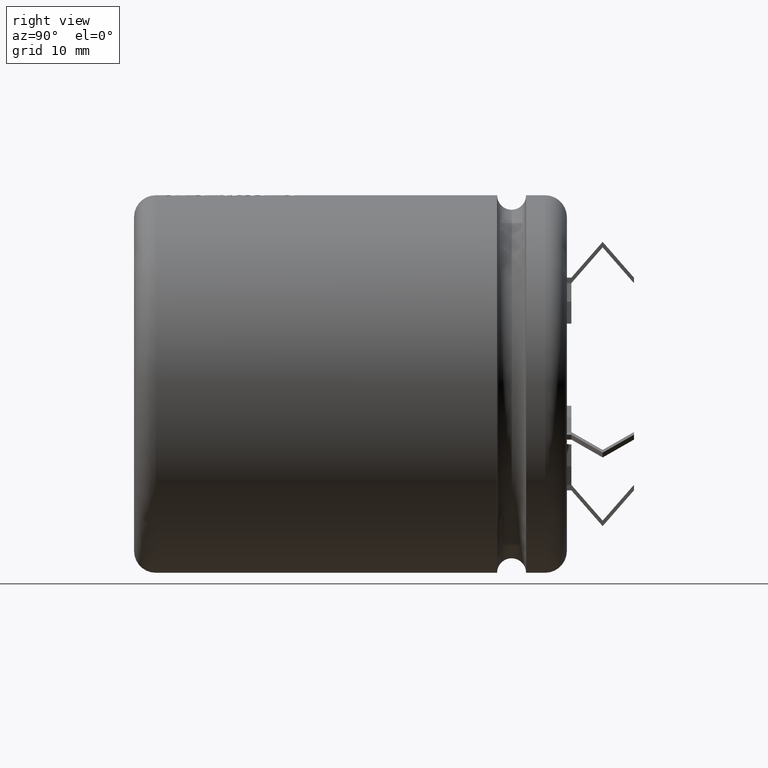
[diagram: clean part render]
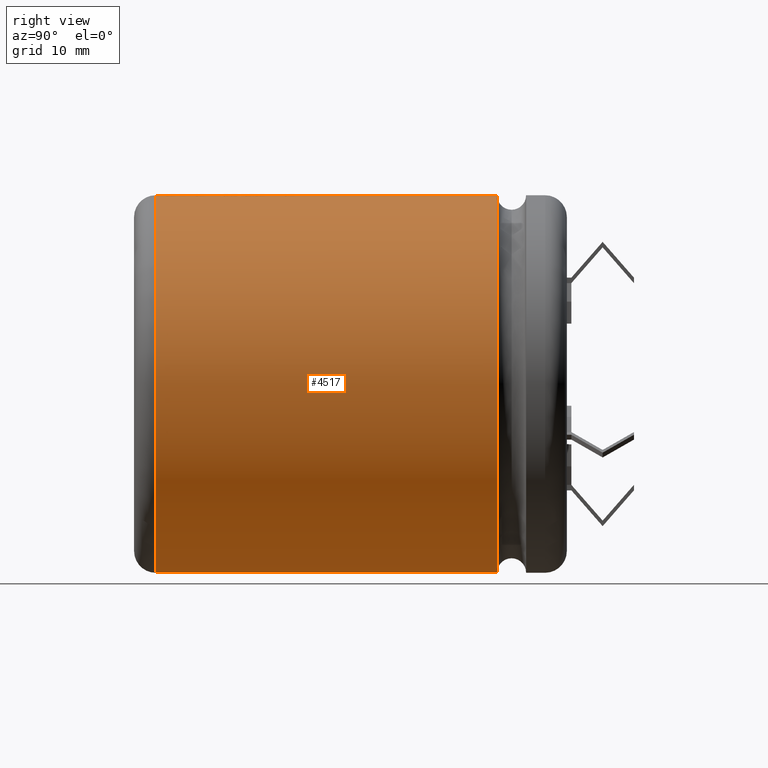
[diagram: same view with one face highlighted and labeled with its STEP entity id]
A machine part, right view. The second image highlights one B-rep face of the part: STEP entity #4517.
In plain terms, the highlighted cylindrical surface (partial cylindrical patch) has radius 20.5 mm, axis along (-0, -1, -0).
Its self-contained STEP definition (entity closure, byte-faithful):
#2 = CARTESIAN_POINT ( 'NONE',  ( 1.023532434687133700, 6.759284640955069500, 20.48082753327001300 ) ) ;
#29 = VERTEX_POINT ( 'NONE', #1728 ) ;
#30 = B_SPLINE_CURVE_WITH_KNOTS ( 'NONE', 3,
 ( #3514, #1691, #938, #2434 ),
 .UNSPECIFIED., .F., .F.,
 ( 4, 4 ),
 ( 0.06501775419659641700, 1.000000000000000000 ),
 .UNSPECIFIED. ) ;
#38 = VECTOR ( 'NONE', #4005, 1000.000000000000000 ) ;
#75 = CARTESIAN_POINT ( 'NONE',  ( 1.533874242116382900, 6.612015992414344000, 20.44253481859263000 ) ) ;
#77 = DIRECTION ( 'NONE',  ( 0.0000000000000000000, 1.000000000000000000, 0.0000000000000000000 ) ) ;
#88 = VECTOR ( 'NONE', #3557, 1000.000000000000000 ) ;
#117 = VERTEX_POINT ( 'NONE', #4685 ) ;
#122 = LINE ( 'NONE', #3037, #3861 ) ;
#130 = CARTESIAN_POINT ( 'NONE',  ( 1.533874242116382900, 11.94969606425971200, 20.44253481859263000 ) ) ;
#143 = ORIENTED_EDGE ( 'NONE', *, *, #2532, .F. ) ;
#144 = CARTESIAN_POINT ( 'NONE',  ( 1.533874242116383100, 3.364711372035859700, 20.44253481859263000 ) ) ;
#160 = CARTESIAN_POINT ( 'NONE',  ( 1.533874242116382900, 4.224663171668884100, 20.44253481859263000 ) ) ;
#187 = CARTESIAN_POINT ( 'NONE',  ( 1.023536039159376400, 16.39528051266818300, 20.48082726281396400 ) ) ;
#195 = VERTEX_POINT ( 'NONE', #3308 ) ;
#200 = CARTESIAN_POINT ( 'NONE',  ( 0.5117662903026392000, 6.906550367358743600, 20.49997495141039400 ) ) ;
#208 = CARTESIAN_POINT ( 'NONE',  ( 1.533874242116382900, 10.49218539282256700, 20.44253481859263000 ) ) ;
#221 = VERTEX_POINT ( 'NONE', #1882 ) ;
#224 = DIRECTION ( 'NONE',  ( 0.0000000000000000000, 1.000000000000000000, 0.0000000000000000000 ) ) ;
#234 = EDGE_CURVE ( 'NONE', #195, #2865, #634, .T. ) ;
#238 = CARTESIAN_POINT ( 'NONE',  ( -4.261781946686701100E-009, 12.39058632697161700, 20.49999237934472500 ) ) ;
#249 = ORIENTED_EDGE ( 'NONE', *, *, #2224, .F. ) ;
#258 = LINE ( 'NONE', #3849, #88 ) ;
#260 = CARTESIAN_POINT ( 'NONE',  ( -8.799123513410994900E-010, 13.15961153051858200, 20.49998773082111500 ) ) ;
#269 = VERTEX_POINT ( 'NONE', #160 ) ;
#271 = LINE ( 'NONE', #2278, #4418 ) ;
#279 = EDGE_CURVE ( 'NONE', #3680, #3292, #1837, .T. ) ;
#286 = DIRECTION ( 'NONE',  ( -0.0000000000000000000, -1.000000000000000000, -0.0000000000000000000 ) ) ;
#346 = CARTESIAN_POINT ( 'NONE',  ( 1.533874242116386900, 15.36704791797066600, 20.44253481859262700 ) ) ;
#381 = CARTESIAN_POINT ( 'NONE',  ( 0.2083062398103539500, 14.32130150560967300, 20.49894164366677900 ) ) ;
#383 = ORIENTED_EDGE ( 'NONE', *, *, #2773, .F. ) ;
#401 = VECTOR ( 'NONE', #3457, 1000.000000000000000 ) ;
#430 = CARTESIAN_POINT ( 'NONE',  ( 1.533874242116382900, 13.08215582357079200, 20.44253481859263000 ) ) ;
#485 = VERTEX_POINT ( 'NONE', #2481 ) ;
#495 = EDGE_CURVE ( 'NONE', #485, #3749, #2173, .T. ) ;
#504 = DIRECTION ( 'NONE',  ( -0.0000000000000000000, -1.000000000000000000, -0.0000000000000000000 ) ) ;
#509 = CARTESIAN_POINT ( 'NONE',  ( 0.5117680354823721500, 11.83874854091586200, 20.49998151941439400 ) ) ;
#510 = VECTOR ( 'NONE', #3892, 1000.000000000000000 ) ;
#511 = CARTESIAN_POINT ( 'NONE',  ( 0.5117662898786402600, 13.01247491140750900, 20.49997495150672600 ) ) ;
#545 = CARTESIAN_POINT ( 'NONE',  ( 1.023538503571757900, 4.371347125799276900, 20.48082707790056000 ) ) ;
#552 = VECTOR ( 'NONE', #1270, 1000.000000000000000 ) ;
#617 = CIRCLE ( 'NONE', #2366, 20.50000000000000000 ) ;
#623 = CARTESIAN_POINT ( 'NONE',  ( 1.533874242116382900, 6.274610831861059200, 20.44253481859263000 ) ) ;
#628 = CARTESIAN_POINT ( 'NONE',  ( 0.5117686877301164100, 17.40382194881549100, 20.49998658809380800 ) ) ;
#629 = VERTEX_POINT ( 'NONE', #238 ) ;
#634 = LINE ( 'NONE', #75, #3533 ) ;
#652 = VERTEX_POINT ( 'NONE', #4260 ) ;
#653 = CARTESIAN_POINT ( 'NONE',  ( -2.643937846699079000E-010, 5.638215953928428400, 20.49999993557945300 ) ) ;
#667 = EDGE_CURVE ( 'NONE', #3163, #29, #2642, .T. ) ;
#704 = LINE ( 'NONE', #381, #1459 ) ;
#723 = CARTESIAN_POINT ( 'NONE',  ( 2.510525938252074500E-015, 47.00000000000000000, 20.50000000000000000 ) ) ;
#734 = VECTOR ( 'NONE', #3306, 1000.000000000000000 ) ;
#757 = VERTEX_POINT ( 'NONE', #2839 ) ;
#759 = ORIENTED_EDGE ( 'NONE', *, *, #1200, .F. ) ;
#761 = ORIENTED_EDGE ( 'NONE', *, *, #4355, .F. ) ;
#819 = ORIENTED_EDGE ( 'NONE', *, *, #3942, .F. ) ;
#820 = CARTESIAN_POINT ( 'NONE',  ( 1.023532434256806000, 13.22936067174571000, 20.48082753330230000 ) ) ;
#821 = ORIENTED_EDGE ( 'NONE', *, *, #4254, .F. ) ;
#823 = DIRECTION ( 'NONE',  ( 0.0000000000000000000, 1.000000000000000000, 0.0000000000000000000 ) ) ;
#844 = LINE ( 'NONE', #4112, #969 ) ;
#849 = ORIENTED_EDGE ( 'NONE', *, *, #3529, .F. ) ;
#867 = DIRECTION ( 'NONE',  ( -0.0000000000000000000, -1.000000000000000000, -0.0000000000000000000 ) ) ;
#869 = CARTESIAN_POINT ( 'NONE',  ( -1.204316080522336500E-008, 12.10891302684181200, 20.49999235220771600 ) ) ;
#878 = VERTEX_POINT ( 'NONE', #4026 ) ;
#891 = CARTESIAN_POINT ( 'NONE',  ( -4.314412517703495400E-009, 10.31086990600085500, 20.49999254565389300 ) ) ;
#896 = VECTOR ( 'NONE', #2714, 1000.000000000000000 ) ;
#899 = ORIENTED_EDGE ( 'NONE', *, *, #3295, .F. ) ;
#914 = ORIENTED_EDGE ( 'NONE', *, *, #3303, .F. ) ;
#938 = CARTESIAN_POINT ( 'NONE',  ( 1.023538545613726700, 5.149014990978877800, 20.48082707474600600 ) ) ;
#945 = LINE ( 'NONE', #2078, #510 ) ;
#969 = VECTOR ( 'NONE', #2992, 1000.000000000000000 ) ;
#994 = CARTESIAN_POINT ( 'NONE',  ( 1.533874242116386900, 17.10962756807193600, 20.44253481859262700 ) ) ;
#1003 = LINE ( 'NONE', #723, #2653 ) ;
#1024 = VECTOR ( 'NONE', #3834, 1000.000000000000000 ) ;
#1045 = VERTEX_POINT ( 'NONE', #3606 ) ;
#1058 = DIRECTION ( 'NONE',  ( 0.0000000000000000000, 1.000000000000000000, 0.0000000000000000000 ) ) ;
#1088 = DIRECTION ( 'NONE',  ( -0.0000000000000000000, -1.000000000000000000, -0.0000000000000000000 ) ) ;
#1112 = B_SPLINE_CURVE_WITH_KNOTS ( 'NONE', 3,
 ( #2370, #2710, #511, #260 ),
 .UNSPECIFIED., .F., .F.,
 ( 4, 4 ),
 ( 0.0000000000000000000, 0.5076699967697234600 ),
 .UNSPECIFIED. ) ;
#1126 = ORIENTED_EDGE ( 'NONE', *, *, #2252, .F. ) ;
#1140 = CARTESIAN_POINT ( 'NONE',  ( -2.677084627917313200E-010, 10.57824387034095400, 20.49999255912739600 ) ) ;
#1145 = VERTEX_POINT ( 'NONE', #2730 ) ;
#1168 = ORIENTED_EDGE ( 'NONE', *, *, #4578, .F. ) ;
#1188 = CARTESIAN_POINT ( 'NONE',  ( 0.4588026309618105100, 14.24978521311553500, 20.49639614828297600 ) ) ;
#1200 = EDGE_CURVE ( 'NONE', #4554, #2296, #2042, .T. ) ;
#1241 = B_SPLINE_CURVE_WITH_KNOTS ( 'NONE', 3,
 ( #1492, #2951, #509, #869 ),
 .UNSPECIFIED., .F., .F.,
 ( 4, 4 ),
 ( 0.0000000000000000000, 0.5675075879899763600 ),
 .UNSPECIFIED. ) ;
#1270 = DIRECTION ( 'NONE',  ( -0.0000000000000000000, -1.000000000000000000, -0.0000000000000000000 ) ) ;
#1276 = VERTEX_POINT ( 'NONE', #3852 ) ;
#1280 = CARTESIAN_POINT ( 'NONE',  ( 0.5117700734574676100, 4.518030603453526700, 20.49999872263982000 ) ) ;
#1282 = EDGE_CURVE ( 'NONE', #1145, #117, #617, .T. ) ;
#1318 = CARTESIAN_POINT ( 'NONE',  ( -1.369721348325270100E-010, 4.664714496102080300, 20.49999993562216000 ) ) ;
#1366 = CARTESIAN_POINT ( 'NONE',  ( 1.533874242116386900, 17.10962756807193600, 20.44253481859262700 ) ) ;
#1374 = CARTESIAN_POINT ( 'NONE',  ( 0.0000000000000000000, 47.00000000000000000, 0.0000000000000000000 ) ) ;
#1375 = B_SPLINE_CURVE_WITH_KNOTS ( 'NONE', 3,
 ( #1992, #2014, #1643, #1980 ),
 .UNSPECIFIED., .F., .F.,
 ( 4, 4 ),
 ( 0.0000000000000000000, 0.3726641714012897100 ),
 .UNSPECIFIED. ) ;
#1377 = CARTESIAN_POINT ( 'NONE',  ( 1.023534361348066100, 10.52087182089977400, 20.48082738870596500 ) ) ;
#1405 = CARTESIAN_POINT ( 'NONE',  ( 0.5117677025315399100, 10.54955781348216900, 20.49998187289039500 ) ) ;
#1417 = LINE ( 'NONE', #4574, #552 ) ;
#1432 = EDGE_CURVE ( 'NONE', #652, #4012, #1003, .T. ) ;
#1459 = VECTOR ( 'NONE', #1058, 1000.000000000000000 ) ;
#1482 = CARTESIAN_POINT ( 'NONE',  ( 1.533874242116382900, 9.331734601897471400, 20.44253481859263000 ) ) ;
#1492 = CARTESIAN_POINT ( 'NONE',  ( 1.533874242116386900, 11.29841721896849400, 20.44253481859262700 ) ) ;
#1493 = CARTESIAN_POINT ( 'NONE',  ( 2.510525938252074500E-015, 39.42314000000000400, -20.50000000000000400 ) ) ;
#1525 = B_SPLINE_CURVE_WITH_KNOTS ( 'NONE', 3,
 ( #4138, #1575, #1188, #4460 ),
 .UNSPECIFIED., .F., .F.,
 ( 4, 4 ),
 ( 0.0000000000000000000, 1.000000000000000000 ),
 .UNSPECIFIED. ) ;
#1526 = LINE ( 'NONE', #4318, #38 ) ;
#1554 = CARTESIAN_POINT ( 'NONE',  ( 1.023532433386043400, 3.511787062961111900, 20.48082753336763800 ) ) ;
#1556 = LINE ( 'NONE', #1978, #3524 ) ;
#1575 = CARTESIAN_POINT ( 'NONE',  ( 0.7092523120753729800, 14.17826893160918500, 20.48925855367495800 ) ) ;
#1584 = CARTESIAN_POINT ( 'NONE',  ( 1.533874242116382900, 13.08215582357079200, 20.44253481859263000 ) ) ;
#1598 = DIRECTION ( 'NONE',  ( -0.0000000000000000000, -1.000000000000000000, -0.0000000000000000000 ) ) ;
#1605 = CARTESIAN_POINT ( 'NONE',  ( 1.533874242116386900, 9.870037818277811700, 20.44253481859262700 ) ) ;
#1625 = EDGE_CURVE ( 'NONE', #4509, #2391, #1698, .T. ) ;
#1630 = CARTESIAN_POINT ( 'NONE',  ( -2.677084627917313200E-010, 10.57824387034095400, 20.49999255912739600 ) ) ;
#1631 = B_SPLINE_CURVE_WITH_KNOTS ( 'NONE', 3,
 ( #2263, #2976, #820, #1584 ),
 .UNSPECIFIED., .F., .F.,
 ( 4, 4 ),
 ( 0.4923300032331091000, 1.000000000000000000 ),
 .UNSPECIFIED. ) ;
#1638 = DIRECTION ( 'NONE',  ( -0.0000000000000000000, 1.000000000000000000, -0.0000000000000000000 ) ) ;
#1641 = DIRECTION ( 'NONE',  ( 0.0000000000000000000, 1.000000000000000000, 0.0000000000000000000 ) ) ;
#1643 = CARTESIAN_POINT ( 'NONE',  ( 0.06943660759005228200, 15.65862230446327200, 20.49999998119719900 ) ) ;
#1650 = ORIENTED_EDGE ( 'NONE', *, *, #4417, .T. ) ;
#1657 = CARTESIAN_POINT ( 'NONE',  ( -4.401201560398663400E-009, 16.68955860945249000, 20.49999542117035000 ) ) ;
#1669 = LINE ( 'NONE', #208, #1024 ) ;
#1670 = VERTEX_POINT ( 'NONE', #2604 ) ;
#1691 = CARTESIAN_POINT ( 'NONE',  ( 0.5117700456383248400, 4.943592752497639100, 20.49999872189245300 ) ) ;
#1698 = B_SPLINE_CURVE_WITH_KNOTS ( 'NONE', 3,
 ( #2527, #1802, #2490, #2901 ),
 .UNSPECIFIED., .F., .F.,
 ( 4, 4 ),
 ( 0.0000000000000000000, 1.000000000000000000 ),
 .UNSPECIFIED. ) ;
#1704 = CARTESIAN_POINT ( 'NONE',  ( 0.5117686877644219700, 16.54241935326032500, 20.49998658808277000 ) ) ;
#1728 = CARTESIAN_POINT ( 'NONE',  ( 1.533874242116383100, 3.364711372035859700, 20.44253481859263000 ) ) ;
#1773 = EDGE_CURVE ( 'NONE', #2595, #757, #1241, .T. ) ;
#1802 = CARTESIAN_POINT ( 'NONE',  ( 1.342588177268692100, 15.42147901172457500, 20.45688767504361700 ) ) ;
#1807 = EDGE_CURVE ( 'NONE', #629, #2737, #2203, .T. ) ;
#1826 = EDGE_CURVE ( 'NONE', #3124, #3825, #1525, .T. ) ;
#1837 = B_SPLINE_CURVE_WITH_KNOTS ( 'NONE', 3,
 ( #1366, #2471, #628, #2832 ),
 .UNSPECIFIED., .F., .F.,
 ( 4, 4 ),
 ( 0.0000000000000000000, 0.6291467272315018900 ),
 .UNSPECIFIED. ) ;
#1851 = EDGE_CURVE ( 'NONE', #3432, #2530, #271, .T. ) ;
#1862 = EDGE_CURVE ( 'NONE', #3163, #1145, #1417, .T. ) ;
#1876 = VECTOR ( 'NONE', #77, 1000.000000000000000 ) ;
#1882 = CARTESIAN_POINT ( 'NONE',  ( -4.314412517703495400E-009, 10.31086990600085500, 20.49999254565389300 ) ) ;
#1884 = EDGE_CURVE ( 'NONE', #652, #1670, #2427, .T. ) ;
#1893 = AXIS2_PLACEMENT_3D ( 'NONE', #3406, #1638, #4146 ) ;
#1915 = ORIENTED_EDGE ( 'NONE', *, *, #1884, .F. ) ;
#1920 = CARTESIAN_POINT ( 'NONE',  ( 1.023534702270122700, 10.01698312642875300, 20.48082736312540000 ) ) ;
#1927 = CARTESIAN_POINT ( 'NONE',  ( 0.5117677789836191400, 12.24362340760252400, 20.49998158459708700 ) ) ;
#1942 = LINE ( 'NONE', #4283, #4262 ) ;
#1978 = CARTESIAN_POINT ( 'NONE',  ( 2.510525938252074500E-015, 47.00000000000000000, 20.50000000000000000 ) ) ;
#1980 = CARTESIAN_POINT ( 'NONE',  ( 2.706466738262547900E-012, 15.67845905065298800, 20.49999998710997300 ) ) ;
#1992 = CARTESIAN_POINT ( 'NONE',  ( 0.2083062398103580300, 15.61894881153985700, 20.49894164366677900 ) ) ;
#2014 = CARTESIAN_POINT ( 'NONE',  ( 0.1388732154745270800, 15.63878555817549400, 20.49964720849395400 ) ) ;
#2020 = ORIENTED_EDGE ( 'NONE', *, *, #1282, .T. ) ;
#2027 = DIRECTION ( 'NONE',  ( 0.0000000000000000000, 0.0000000000000000000, 1.000000000000000000 ) ) ;
#2030 = ORIENTED_EDGE ( 'NONE', *, *, #1807, .F. ) ;
#2042 = CIRCLE ( 'NONE', #1893, 20.50000000000000400 ) ;
#2078 = CARTESIAN_POINT ( 'NONE',  ( 2.510525938252074500E-015, 47.00000000000000000, 20.50000000000000000 ) ) ;
#2088 = B_SPLINE_CURVE_WITH_KNOTS ( 'NONE', 3,
 ( #2712, #545, #1280, #3803 ),
 .UNSPECIFIED., .F., .F.,
 ( 4, 4 ),
 ( 0.0000000000000000000, 0.9349822497971306300 ),
 .UNSPECIFIED. ) ;
#2150 = CARTESIAN_POINT ( 'NONE',  ( -2.643937846699079000E-010, 5.638215953928428400, 20.49999993557945300 ) ) ;
#2151 = EDGE_CURVE ( 'NONE', #3432, #4289, #30, .T. ) ;
#2154 = CARTESIAN_POINT ( 'NONE',  ( -2.502211604426730900E-010, 4.738169972038988000, 20.49999993558420600 ) ) ;
#2155 = EDGE_CURVE ( 'NONE', #2391, #3124, #258, .T. ) ;
#2173 = LINE ( 'NONE', #2444, #2339 ) ;
#2187 = CARTESIAN_POINT ( 'NONE',  ( 0.9594870982861206700, 14.10675263911503800, 20.47753365296276200 ) ) ;
#2203 = B_SPLINE_CURVE_WITH_KNOTS ( 'NONE', 3,
 ( #2340, #1927, #3785, #130 ),
 .UNSPECIFIED., .F., .F.,
 ( 4, 4 ),
 ( 0.4324923758355768700, 1.000000000000000000 ),
 .UNSPECIFIED. ) ;
#2224 = EDGE_CURVE ( 'NONE', #4289, #2927, #1526, .T. ) ;
#2249 = CARTESIAN_POINT ( 'NONE',  ( -8.792308065682244700E-010, 3.805932654816541700, 20.49998773084443100 ) ) ;
#2252 = EDGE_CURVE ( 'NONE', #3825, #1045, #704, .T. ) ;
#2263 = CARTESIAN_POINT ( 'NONE',  ( -8.806168523602534100E-010, 13.52376457376976600, 20.49998773079722600 ) ) ;
#2273 = LINE ( 'NONE', #4528, #896 ) ;
#2278 = CARTESIAN_POINT ( 'NONE',  ( 2.510525938252074500E-015, 47.00000000000000000, 20.50000000000000000 ) ) ;
#2296 = VERTEX_POINT ( 'NONE', #1493 ) ;
#2312 = EDGE_LOOP ( 'NONE', ( #759, #3048, #4234, #914, #1915, #3639, #143, #1126, #2766, #3965, #2873, #819, #761, #3314, #1168, #849, #2030, #1650, #3288, #383, #3233, #2577, #2870, #2636, #2726, #821, #2986, #4060, #249, #3153, #3266, #899, #3714, #3550, #3096, #2020, #3459 ) ) ;
#2330 = CARTESIAN_POINT ( 'NONE',  ( 0.0000000000000000000, 47.00000000000000000, -20.50000000000000000 ) ) ;
#2339 = VECTOR ( 'NONE', #286, 1000.000000000000000 ) ;
#2340 = CARTESIAN_POINT ( 'NONE',  ( -4.261781946686701100E-009, 12.39058632697161700, 20.49999237934472500 ) ) ;
#2366 = AXIS2_PLACEMENT_3D ( 'NONE', #4195, #224, #2027 ) ;
#2370 = CARTESIAN_POINT ( 'NONE',  ( 1.533874242116386900, 12.71819884877908900, 20.44253481859262700 ) ) ;
#2391 = VERTEX_POINT ( 'NONE', #2588 ) ;
#2395 = CARTESIAN_POINT ( 'NONE',  ( -8.792308065682244700E-010, 3.805932654816541700, 20.49998773084443100 ) ) ;
#2412 = CARTESIAN_POINT ( 'NONE',  ( 1.533874242116382900, 10.49218539282256700, 20.44253481859263000 ) ) ;
#2427 = B_SPLINE_CURVE_WITH_KNOTS ( 'NONE', 3,
 ( #1657, #1704, #187, #3464 ),
 .UNSPECIFIED., .F., .F.,
 ( 4, 4 ),
 ( 0.3708532727830178800, 1.000000000000000000 ),
 .UNSPECIFIED. ) ;
#2434 = CARTESIAN_POINT ( 'NONE',  ( 1.533874242116386900, 5.354437851732230400, 20.44253481859262700 ) ) ;
#2444 = CARTESIAN_POINT ( 'NONE',  ( 2.510525938252074500E-015, 47.00000000000000000, 20.50000000000000000 ) ) ;
#2471 = CARTESIAN_POINT ( 'NONE',  ( 1.023536039026076600, 17.25672553360553600, 20.48082726282396500 ) ) ;
#2472 = CARTESIAN_POINT ( 'NONE',  ( -8.806168523602534100E-010, 13.52376457376976600, 20.49998773079722600 ) ) ;
#2481 = CARTESIAN_POINT ( 'NONE',  ( -8.813040468022290400E-010, 7.053816141572130300, 20.49998773077389600 ) ) ;
#2484 = CARTESIAN_POINT ( 'NONE',  ( -8.813040468022290400E-010, 7.053816141572130300, 20.49998773077389600 ) ) ;
#2490 = CARTESIAN_POINT ( 'NONE',  ( 1.151100656243663900, 15.47591010259834800, 20.46855548499425800 ) ) ;
#2527 = CARTESIAN_POINT ( 'NONE',  ( 1.533874242116386900, 15.36704791797066600, 20.44253481859262700 ) ) ;
#2530 = VERTEX_POINT ( 'NONE', #1318 ) ;
#2532 = EDGE_CURVE ( 'NONE', #1045, #4012, #1375, .T. ) ;
#2551 = CARTESIAN_POINT ( 'NONE',  ( 1.533874242116386900, 5.354437851732230400, 20.44253481859262700 ) ) ;
#2577 = ORIENTED_EDGE ( 'NONE', *, *, #3137, .T. ) ;
#2588 = CARTESIAN_POINT ( 'NONE',  ( 0.9594870982861166700, 15.53034119635225700, 20.47753365296276200 ) ) ;
#2595 = VERTEX_POINT ( 'NONE', #3152 ) ;
#2604 = CARTESIAN_POINT ( 'NONE',  ( 1.533874242116382900, 16.24814012137220200, 20.44253481859263000 ) ) ;
#2607 = DIRECTION ( 'NONE',  ( 0.0000000000000000000, 1.000000000000000000, 0.0000000000000000000 ) ) ;
#2621 = EDGE_CURVE ( 'NONE', #3215, #878, #3820, .T. ) ;
#2636 = ORIENTED_EDGE ( 'NONE', *, *, #4523, .F. ) ;
#2642 = B_SPLINE_CURVE_WITH_KNOTS ( 'NONE', 3,
 ( #2249, #4481, #1554, #144 ),
 .UNSPECIFIED., .F., .F.,
 ( 4, 4 ),
 ( 0.4923300032275113000, 1.000000000000000000 ),
 .UNSPECIFIED. ) ;
#2653 = VECTOR ( 'NONE', #1088, 1000.000000000000000 ) ;
#2690 = VERTEX_POINT ( 'NONE', #3904 ) ;
#2710 = CARTESIAN_POINT ( 'NONE',  ( 1.023532433816110900, 12.86533834007043900, 20.48082753333536500 ) ) ;
#2712 = CARTESIAN_POINT ( 'NONE',  ( 1.533874242116382900, 4.224663171668884100, 20.44253481859263000 ) ) ;
#2714 = DIRECTION ( 'NONE',  ( 0.0000000000000000000, 1.000000000000000000, 0.0000000000000000000 ) ) ;
#2723 = LINE ( 'NONE', #430, #1876 ) ;
#2726 = ORIENTED_EDGE ( 'NONE', *, *, #234, .F. ) ;
#2730 = CARTESIAN_POINT ( 'NONE',  ( 0.0000000000000000000, 2.361599999999998400, 20.49999999999999600 ) ) ;
#2737 = VERTEX_POINT ( 'NONE', #4228 ) ;
#2766 = ORIENTED_EDGE ( 'NONE', *, *, #1826, .F. ) ;
#2773 = EDGE_CURVE ( 'NONE', #878, #2595, #1669, .T. ) ;
#2813 = B_SPLINE_CURVE_WITH_KNOTS ( 'NONE', 3,
 ( #1605, #1920, #3838, #891 ),
 .UNSPECIFIED., .F., .F.,
 ( 4, 4 ),
 ( 0.0000000000000000000, 0.5702405492299275100 ),
 .UNSPECIFIED. ) ;
#2832 = CARTESIAN_POINT ( 'NONE',  ( -4.398884928757369000E-009, 17.55091877952357700, 20.49999542117415900 ) ) ;
#2839 = CARTESIAN_POINT ( 'NONE',  ( -1.204316080522336500E-008, 12.10891302684181200, 20.49999235220771600 ) ) ;
#2864 = CARTESIAN_POINT ( 'NONE',  ( 0.2083062398103539500, 14.32130150560967300, 20.49894164366677900 ) ) ;
#2865 = VERTEX_POINT ( 'NONE', #3500 ) ;
#2870 = ORIENTED_EDGE ( 'NONE', *, *, #3977, .F. ) ;
#2873 = ORIENTED_EDGE ( 'NONE', *, *, #1625, .F. ) ;
#2895 = CARTESIAN_POINT ( 'NONE',  ( 1.533874242116382900, 6.612015992414344000, 20.44253481859263000 ) ) ;
#2901 = CARTESIAN_POINT ( 'NONE',  ( 0.9594870982861166700, 15.53034119635225700, 20.47753365296276200 ) ) ;
#2920 = DIRECTION ( 'NONE',  ( 0.0000000000000000000, 0.0000000000000000000, -1.000000000000000000 ) ) ;
#2927 = VERTEX_POINT ( 'NONE', #623 ) ;
#2951 = CARTESIAN_POINT ( 'NONE',  ( 1.023535301879621400, 11.56858452072258300, 20.48082731813461900 ) ) ;
#2976 = CARTESIAN_POINT ( 'NONE',  ( 0.5117662900931626600, 13.37656259886169600, 20.49997495145798600 ) ) ;
#2986 = ORIENTED_EDGE ( 'NONE', *, *, #495, .T. ) ;
#2992 = DIRECTION ( 'NONE',  ( -0.0000000000000000000, -1.000000000000000000, -0.0000000000000000000 ) ) ;
#2993 = CARTESIAN_POINT ( 'NONE',  ( -8.799123513410994900E-010, 13.15961153051858200, 20.49998773082111500 ) ) ;
#3026 = CARTESIAN_POINT ( 'NONE',  ( 1.533874242116382900, 3.364711372035859700, 20.44253481859263000 ) ) ;
#3037 = CARTESIAN_POINT ( 'NONE',  ( 2.510525938252074500E-015, 47.00000000000000000, 20.50000000000000000 ) ) ;
#3048 = ORIENTED_EDGE ( 'NONE', *, *, #3578, .T. ) ;
#3096 = ORIENTED_EDGE ( 'NONE', *, *, #1862, .T. ) ;
#3124 = VERTEX_POINT ( 'NONE', #2187 ) ;
#3137 = EDGE_CURVE ( 'NONE', #3215, #221, #844, .T. ) ;
#3150 = CARTESIAN_POINT ( 'NONE',  ( 1.533874242116382900, 6.274610831861059200, 20.44253481859263000 ) ) ;
#3152 = CARTESIAN_POINT ( 'NONE',  ( 1.533874242116386900, 11.29841721896849400, 20.44253481859262700 ) ) ;
#3153 = ORIENTED_EDGE ( 'NONE', *, *, #2151, .F. ) ;
#3163 = VERTEX_POINT ( 'NONE', #2395 ) ;
#3179 = B_SPLINE_CURVE_WITH_KNOTS ( 'NONE', 3,
 ( #2484, #200, #2, #2895 ),
 .UNSPECIFIED., .F., .F.,
 ( 4, 4 ),
 ( 0.4923300032358752800, 1.000000000000000000 ),
 .UNSPECIFIED. ) ;
#3193 = LINE ( 'NONE', #2330, #401 ) ;
#3208 = AXIS2_PLACEMENT_3D ( 'NONE', #1374, #3936, #2920 ) ;
#3215 = VERTEX_POINT ( 'NONE', #1140 ) ;
#3233 = ORIENTED_EDGE ( 'NONE', *, *, #2621, .F. ) ;
#3266 = ORIENTED_EDGE ( 'NONE', *, *, #1851, .T. ) ;
#3288 = ORIENTED_EDGE ( 'NONE', *, *, #1773, .F. ) ;
#3292 = VERTEX_POINT ( 'NONE', #3836 ) ;
#3295 = EDGE_CURVE ( 'NONE', #269, #2530, #2088, .T. ) ;
#3303 = EDGE_CURVE ( 'NONE', #1670, #3680, #1942, .T. ) ;
#3306 = DIRECTION ( 'NONE',  ( 0.0000000000000000000, 1.000000000000000000, 0.0000000000000000000 ) ) ;
#3308 = CARTESIAN_POINT ( 'NONE',  ( 1.533874242116382900, 6.612015992414344000, 20.44253481859263000 ) ) ;
#3314 = ORIENTED_EDGE ( 'NONE', *, *, #4068, .T. ) ;
#3350 = VERTEX_POINT ( 'NONE', #4008 ) ;
#3406 = CARTESIAN_POINT ( 'NONE',  ( 0.0000000000000000000, 39.42314000000000400, 0.0000000000000000000 ) ) ;
#3426 = VERTEX_POINT ( 'NONE', #2472 ) ;
#3432 = VERTEX_POINT ( 'NONE', #2154 ) ;
#3457 = DIRECTION ( 'NONE',  ( -0.0000000000000000000, -1.000000000000000000, -0.0000000000000000000 ) ) ;
#3459 = ORIENTED_EDGE ( 'NONE', *, *, #4077, .F. ) ;
#3464 = CARTESIAN_POINT ( 'NONE',  ( 1.533874242116382900, 16.24814012137220200, 20.44253481859263000 ) ) ;
#3500 = CARTESIAN_POINT ( 'NONE',  ( 1.533874242116382900, 9.331734601897471400, 20.44253481859263000 ) ) ;
#3513 = B_SPLINE_CURVE_WITH_KNOTS ( 'NONE', 3,
 ( #3150, #3860, #3941, #2150 ),
 .UNSPECIFIED., .F., .F.,
 ( 4, 4 ),
 ( 0.0000000000000000000, 0.9349822453035103700 ),
 .UNSPECIFIED. ) ;
#3514 = CARTESIAN_POINT ( 'NONE',  ( -2.502211604426730900E-010, 4.738169972038988000, 20.49999993558420600 ) ) ;
#3524 = VECTOR ( 'NONE', #867, 1000.000000000000000 ) ;
#3527 = FACE_OUTER_BOUND ( 'NONE', #2312, .T. ) ;
#3529 = EDGE_CURVE ( 'NONE', #2737, #3350, #2273, .T. ) ;
#3533 = VECTOR ( 'NONE', #2607, 1000.000000000000000 ) ;
#3550 = ORIENTED_EDGE ( 'NONE', *, *, #667, .F. ) ;
#3557 = DIRECTION ( 'NONE',  ( 0.0000000000000000000, -1.000000000000000000, 0.0000000000000000000 ) ) ;
#3578 = EDGE_CURVE ( 'NONE', #4554, #3292, #122, .T. ) ;
#3606 = CARTESIAN_POINT ( 'NONE',  ( 0.2083062398103580300, 15.61894881153985700, 20.49894164366677900 ) ) ;
#3639 = ORIENTED_EDGE ( 'NONE', *, *, #1432, .T. ) ;
#3680 = VERTEX_POINT ( 'NONE', #994 ) ;
#3714 = ORIENTED_EDGE ( 'NONE', *, *, #4377, .F. ) ;
#3749 = VERTEX_POINT ( 'NONE', #653 ) ;
#3785 = CARTESIAN_POINT ( 'NONE',  ( 1.023534624974481200, 12.09666078643936300, 20.48082736892515900 ) ) ;
#3794 = CARTESIAN_POINT ( 'NONE',  ( 2.706466738262547900E-012, 15.67845905065298800, 20.49999998710997300 ) ) ;
#3803 = CARTESIAN_POINT ( 'NONE',  ( -1.369721348325270100E-010, 4.664714496102080300, 20.49999993562216000 ) ) ;
#3820 = B_SPLINE_CURVE_WITH_KNOTS ( 'NONE', 3,
 ( #1630, #1405, #1377, #2412 ),
 .UNSPECIFIED., .F., .F.,
 ( 4, 4 ),
 ( 0.4297594318745406900, 1.000000000000000000 ),
 .UNSPECIFIED. ) ;
#3825 = VERTEX_POINT ( 'NONE', #2864 ) ;
#3834 = DIRECTION ( 'NONE',  ( 0.0000000000000000000, 1.000000000000000000, 0.0000000000000000000 ) ) ;
#3836 = CARTESIAN_POINT ( 'NONE',  ( -4.398884928757369000E-009, 17.55091877952357700, 20.49999542117415900 ) ) ;
#3838 = CARTESIAN_POINT ( 'NONE',  ( 0.5117678299525731900, 10.16392636337133500, 20.49998184027220900 ) ) ;
#3849 = CARTESIAN_POINT ( 'NONE',  ( 0.9594870982861166700, 15.53034119635225700, 20.47753365296276200 ) ) ;
#3852 = CARTESIAN_POINT ( 'NONE',  ( 1.533874242116382900, 13.08215582357079200, 20.44253481859263000 ) ) ;
#3860 = CARTESIAN_POINT ( 'NONE',  ( 1.023538550876059300, 6.062478966235431700, 20.48082707435115800 ) ) ;
#3861 = VECTOR ( 'NONE', #504, 1000.000000000000000 ) ;
#3892 = DIRECTION ( 'NONE',  ( -0.0000000000000000000, -1.000000000000000000, -0.0000000000000000000 ) ) ;
#3904 = CARTESIAN_POINT ( 'NONE',  ( 1.533874242116386900, 9.870037818277811700, 20.44253481859262700 ) ) ;
#3936 = DIRECTION ( 'NONE',  ( -0.0000000000000000000, -1.000000000000000000, -0.0000000000000000000 ) ) ;
#3941 = CARTESIAN_POINT ( 'NONE',  ( 0.5117700421562504400, 5.850347737387596500, 20.49999872179890700 ) ) ;
#3942 = EDGE_CURVE ( 'NONE', #1276, #4509, #2723, .T. ) ;
#3965 = ORIENTED_EDGE ( 'NONE', *, *, #2155, .F. ) ;
#3977 = EDGE_CURVE ( 'NONE', #2690, #221, #2813, .T. ) ;
#4005 = DIRECTION ( 'NONE',  ( 0.0000000000000000000, 1.000000000000000000, 0.0000000000000000000 ) ) ;
#4008 = CARTESIAN_POINT ( 'NONE',  ( 1.533874242116386900, 12.71819884877908900, 20.44253481859262700 ) ) ;
#4012 = VERTEX_POINT ( 'NONE', #3794 ) ;
#4026 = CARTESIAN_POINT ( 'NONE',  ( 1.533874242116382900, 10.49218539282256700, 20.44253481859263000 ) ) ;
#4060 = ORIENTED_EDGE ( 'NONE', *, *, #4620, .F. ) ;
#4068 = EDGE_CURVE ( 'NONE', #3426, #4360, #945, .T. ) ;
#4077 = EDGE_CURVE ( 'NONE', #2296, #117, #3193, .T. ) ;
#4112 = CARTESIAN_POINT ( 'NONE',  ( 2.510525938252074500E-015, 47.00000000000000000, 20.50000000000000000 ) ) ;
#4138 = CARTESIAN_POINT ( 'NONE',  ( 0.9594870982861206700, 14.10675263911503800, 20.47753365296276200 ) ) ;
#4146 = DIRECTION ( 'NONE',  ( 0.0000000000000000000, 0.0000000000000000000, 1.000000000000000000 ) ) ;
#4195 = CARTESIAN_POINT ( 'NONE',  ( 0.0000000000000000000, 2.361599999999998400, 0.0000000000000000000 ) ) ;
#4228 = CARTESIAN_POINT ( 'NONE',  ( 1.533874242116382900, 11.94969606425971200, 20.44253481859263000 ) ) ;
#4234 = ORIENTED_EDGE ( 'NONE', *, *, #279, .F. ) ;
#4254 = EDGE_CURVE ( 'NONE', #485, #195, #3179, .T. ) ;
#4260 = CARTESIAN_POINT ( 'NONE',  ( -4.401201560398663400E-009, 16.68955860945249000, 20.49999542117035000 ) ) ;
#4262 = VECTOR ( 'NONE', #823, 1000.000000000000000 ) ;
#4283 = CARTESIAN_POINT ( 'NONE',  ( 1.533874242116382900, 16.24814012137220200, 20.44253481859263000 ) ) ;
#4289 = VERTEX_POINT ( 'NONE', #2551 ) ;
#4318 = CARTESIAN_POINT ( 'NONE',  ( 1.533874242116382900, 5.354437851732230400, 20.44253481859263000 ) ) ;
#4324 = CYLINDRICAL_SURFACE ( 'NONE', #3208, 20.50000000000000000 ) ;
#4355 = EDGE_CURVE ( 'NONE', #3426, #1276, #1631, .T. ) ;
#4360 = VERTEX_POINT ( 'NONE', #2993 ) ;
#4377 = EDGE_CURVE ( 'NONE', #29, #269, #4617, .T. ) ;
#4378 = LINE ( 'NONE', #1482, #734 ) ;
#4417 = EDGE_CURVE ( 'NONE', #629, #757, #1556, .T. ) ;
#4418 = VECTOR ( 'NONE', #1598, 1000.000000000000000 ) ;
#4450 = CARTESIAN_POINT ( 'NONE',  ( 0.0000000000000000000, 39.42314000000000400, 20.50000000000000400 ) ) ;
#4460 = CARTESIAN_POINT ( 'NONE',  ( 0.2083062398103539500, 14.32130150560967300, 20.49894164366677900 ) ) ;
#4481 = CARTESIAN_POINT ( 'NONE',  ( 0.5117662896692895000, 3.658859835010646000, 20.49997495155429000 ) ) ;
#4509 = VERTEX_POINT ( 'NONE', #346 ) ;
#4517 = ADVANCED_FACE ( 'NONE', ( #3527 ), #4324, .T. ) ;
#4523 = EDGE_CURVE ( 'NONE', #2865, #2690, #4378, .T. ) ;
#4528 = CARTESIAN_POINT ( 'NONE',  ( 1.533874242116382900, 11.94969606425971200, 20.44253481859263000 ) ) ;
#4553 = VECTOR ( 'NONE', #1641, 1000.000000000000000 ) ;
#4554 = VERTEX_POINT ( 'NONE', #4450 ) ;
#4574 = CARTESIAN_POINT ( 'NONE',  ( 2.510525938252074500E-015, 47.00000000000000000, 20.50000000000000000 ) ) ;
#4578 = EDGE_CURVE ( 'NONE', #3350, #4360, #1112, .T. ) ;
#4617 = LINE ( 'NONE', #3026, #4553 ) ;
#4620 = EDGE_CURVE ( 'NONE', #2927, #3749, #3513, .T. ) ;
#4685 = CARTESIAN_POINT ( 'NONE',  ( 2.510525938252074100E-015, 2.361599999999998400, -20.49999999999999600 ) ) ;